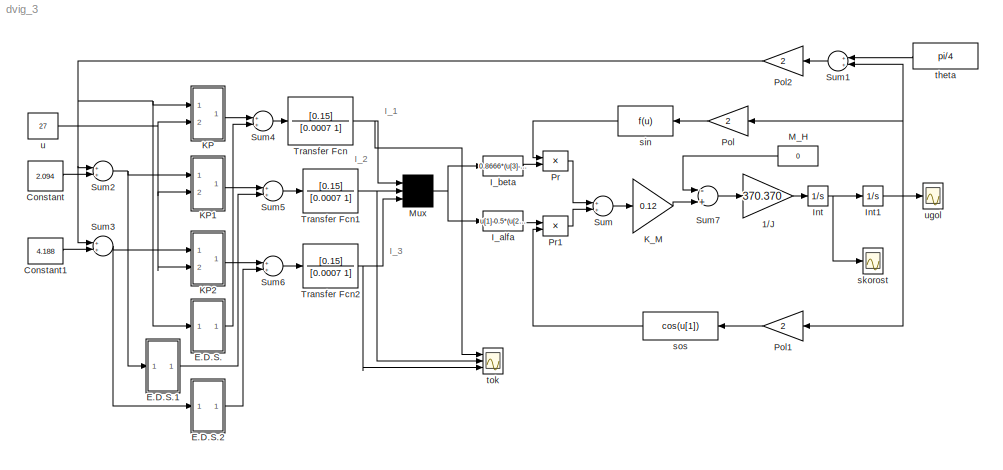
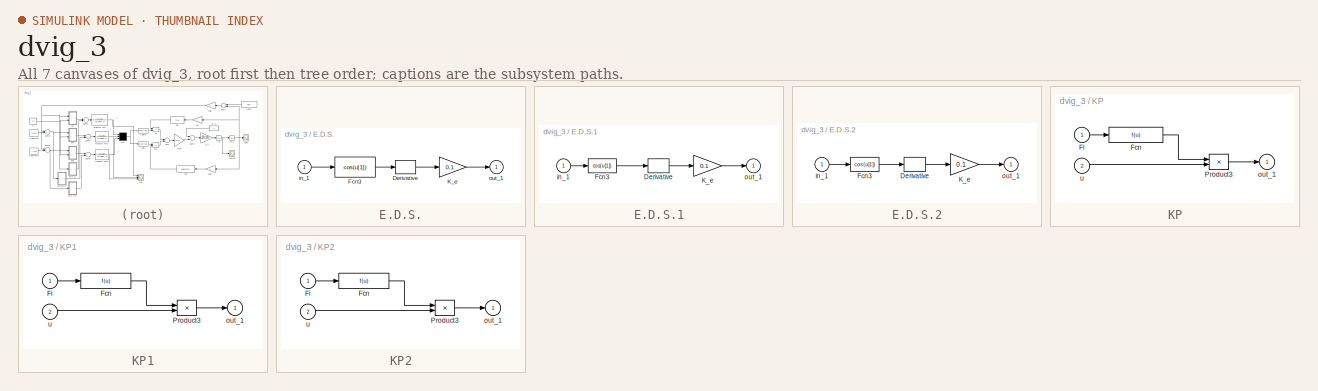
[diagram: thumbnail index - all 7 canvases of the model, root first then tree order]
MODEL dvig_3
KIND model
BLOCK [Gain] 1//J
  Gain = 370.370
  SID = 1
BLOCK [Constant] Constant
  SID = 2
  Value = 2.094
BLOCK [Constant] Constant1
  SID = 3
  Value = 4.188
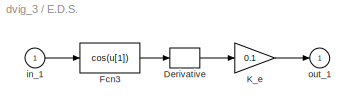
BLOCK [SubSystem] E.D.S.
  Ports = [1, 1]
  RequestExecContextInheritance = off
  SID = 4
  ShowPortLabels = none
  Variant = off
BLOCK [Derivative] E.D.S./Derivative
  SID = 6
BLOCK [Fcn] E.D.S./Fcn3
  Expr = cos(u[1])
  SID = 7
BLOCK [Gain] E.D.S./K_e
  Gain = 0.1
  SID = 8
BLOCK [Inport] E.D.S./in_1
  IconDisplay = Port number
  SID = 5
BLOCK [Outport] E.D.S./out_1
  IconDisplay = Port number
  SID = 9
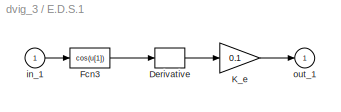
BLOCK [SubSystem] E.D.S.1
  Ports = [1, 1]
  RequestExecContextInheritance = off
  SID = 10
  ShowPortLabels = none
  Variant = off
BLOCK [Derivative] E.D.S.1/Derivative
  SID = 12
BLOCK [Fcn] E.D.S.1/Fcn3
  Expr = cos(u[1])
  SID = 13
BLOCK [Gain] E.D.S.1/K_e
  Gain = 0.1
  SID = 14
BLOCK [Inport] E.D.S.1/in_1
  IconDisplay = Port number
  SID = 11
BLOCK [Outport] E.D.S.1/out_1
  IconDisplay = Port number
  SID = 15
BLOCK [SubSystem] E.D.S.2
  Ports = [1, 1]
  RequestExecContextInheritance = off
  SID = 16
  ShowPortLabels = none
  Variant = off
BLOCK [Derivative] E.D.S.2/Derivative
  SID = 18
BLOCK [Fcn] E.D.S.2/Fcn3
  Expr = cos(u[1])
  SID = 19
BLOCK [Gain] E.D.S.2/K_e
  Gain = 0.1
  SID = 20
BLOCK [Inport] E.D.S.2/in_1
  IconDisplay = Port number
  SID = 17
BLOCK [Outport] E.D.S.2/out_1
  IconDisplay = Port number
  SID = 21
BLOCK [Fcn] I_alfa
  Expr = u[1]-0.5*(u[2]+u[3])
  SID = 22
BLOCK [Fcn] I_beta
  Expr = 0.8666*(u[3]-u[2])
  SID = 23
BLOCK [Integrator] Int
  Ports = [1, 1]
  SID = 24
BLOCK [Integrator] Int1
  Ports = [1, 1]
  SID = 25
BLOCK [SubSystem] KP
  Ports = [2, 1]
  RequestExecContextInheritance = off
  SID = 26
  ShowPortLabels = none
  Variant = off
BLOCK [Fcn] KP/Fcn
  SID = 29
BLOCK [Inport] KP/Fi
  IconDisplay = Port number
  SID = 27
BLOCK [Product] KP/Product3
  Ports = [2, 1]
  RndMeth = Floor
  SID = 30
BLOCK [Outport] KP/out_1
  IconDisplay = Port number
  SID = 31
BLOCK [Inport] KP/u
  IconDisplay = Port number
  Port = 2
  SID = 28
BLOCK [SubSystem] KP1
  Ports = [2, 1]
  RequestExecContextInheritance = off
  SID = 32
  ShowPortLabels = none
  Variant = off
BLOCK [Fcn] KP1/Fcn
  SID = 35
BLOCK [Inport] KP1/Fi
  IconDisplay = Port number
  SID = 33
BLOCK [Product] KP1/Product3
  Ports = [2, 1]
  RndMeth = Floor
  SID = 36
BLOCK [Outport] KP1/out_1
  IconDisplay = Port number
  SID = 37
BLOCK [Inport] KP1/u
  IconDisplay = Port number
  Port = 2
  SID = 34
BLOCK [SubSystem] KP2
  Ports = [2, 1]
  RequestExecContextInheritance = off
  SID = 38
  ShowPortLabels = none
  Variant = off
BLOCK [Fcn] KP2/Fcn
  SID = 41
BLOCK [Inport] KP2/Fi
  IconDisplay = Port number
  SID = 39
BLOCK [Product] KP2/Product3
  Ports = [2, 1]
  RndMeth = Floor
  SID = 42
BLOCK [Outport] KP2/out_1
  IconDisplay = Port number
  SID = 43
BLOCK [Inport] KP2/u
  IconDisplay = Port number
  Port = 2
  SID = 40
BLOCK [Gain] K_M
  Gain = 0.12
  SID = 44
BLOCK [Constant] M_H
  SID = 45
  Value = 0
BLOCK [Mux] Mux
  Inputs = 3
  Ports = [3, 1]
  SID = 46
BLOCK [Gain] Pol
  Gain = 2
  SID = 47
BLOCK [Gain] Pol1
  Gain = 2
  SID = 48
BLOCK [Gain] Pol2
  Gain = 2
  SID = 49
BLOCK [Product] Pr
  Ports = [2, 1]
  RndMeth = Floor
  SID = 50
BLOCK [Product] Pr1
  Ports = [2, 1]
  RndMeth = Floor
  SID = 51
BLOCK [Sum] Sum
  Ports = [2, 1]
  SID = 52
BLOCK [Sum] Sum1
  Ports = [2, 1]
  SID = 53
BLOCK [Sum] Sum2
  Ports = [2, 1]
  SID = 54
BLOCK [Sum] Sum3
  Ports = [2, 1]
  SID = 55
BLOCK [Sum] Sum4
  Ports = [2, 1]
  SID = 56
BLOCK [Sum] Sum5
  Ports = [2, 1]
  SID = 57
BLOCK [Sum] Sum6
  Ports = [2, 1]
  SID = 58
BLOCK [Sum] Sum7
  Inputs = -+
  Ports = [2, 1]
  SID = 59
BLOCK [TransferFcn] Transfer Fcn
  Denominator = [0.0007 1]
  Numerator = [0.15]
  SID = 60
BLOCK [TransferFcn] Transfer Fcn1
  Denominator = [0.0007 1]
  Numerator = [0.15]
  SID = 61
BLOCK [TransferFcn] Transfer Fcn2
  Denominator = [0.0007 1]
  Numerator = [0.15]
  SID = 62
BLOCK [Fcn] sin
  SID = 63
BLOCK [Scope] skorost
  NumInputPorts = 1
  Ports = [1]
  SID = 64
  ScopeSpecificationString = Simulink.scopes.TimeScopeBlockCfg('CurrentConfiguration', extmgr.ConfigurationSet(extmgr.Configuration('Core','General UI',true),extmgr.Configuration('Core','Source UI',true),extmgr.Configuration('Sources','WiredSimulink',true,'DataLoggingSaveFormat','StructureWithTime','DataLoggingDecimation','1','DataLoggingDecimateData',true,'DataLogging',true,'DataLoggingVariableName','result_2'),extmgr.Config...<+1641ch>
BLOCK [Fcn] sos
  Expr = cos(u[1])
  SID = 65
BLOCK [Constant] theta
  SID = 66
  Value = pi/4
BLOCK [Scope] tok
  NumInputPorts = 3
  Ports = [3]
  SID = 67
  ScopeSpecificationString = Simulink.scopes.TimeScopeBlockCfg('CurrentConfiguration', extmgr.ConfigurationSet(extmgr.Configuration('Core','General UI',true),extmgr.Configuration('Core','Source UI',true),extmgr.Configuration('Sources','WiredSimulink',true,'DataLoggingSaveFormat','StructureWithTime','DataLoggingLimitDataPoints',true,'DataLoggingDecimation','1','DataLoggingDecimateData',true,'DataLogging',true,'DataLoggingVaria...<+1706ch>
BLOCK [Constant] u
  SID = 68
  Value = 27
BLOCK [Scope] ugol
  NumInputPorts = 1
  Ports = [1]
  SID = 69
  ScopeSpecificationString = C++SS(StrPVP('Location','[6, 60, 336, 440]'),StrPVP('Open','off'),MxPVP('AxesTitles',53,'struct(''axes1'',''%<SignalLabel>'')'),StrPVP('TimeRange','4.000000'),StrPVP('YMin','-1'),StrPVP('YMax','1'),StrPVP('DataFormat','Array'),StrPVP('LimitDataPoints','on'),StrPVP('Decimation','1'),StrPVP('BlockParamSampleInput','off'))
ANNOTATION (root): I_1
ANNOTATION (root): I_2
ANNOTATION (root): I_3
LINE 1//J:1 -> Int:1
LINE Constant1:1 -> Sum3:2
LINE Constant:1 -> Sum2:2
LINE E.D.S./Derivative:1 -> E.D.S./K_e:1
LINE E.D.S./Fcn3:1 -> E.D.S./Derivative:1
LINE E.D.S./K_e:1 -> E.D.S./out_1:1
LINE E.D.S./in_1:1 -> E.D.S./Fcn3:1
LINE E.D.S.1/Derivative:1 -> E.D.S.1/K_e:1
LINE E.D.S.1/Fcn3:1 -> E.D.S.1/Derivative:1
LINE E.D.S.1/K_e:1 -> E.D.S.1/out_1:1
LINE E.D.S.1/in_1:1 -> E.D.S.1/Fcn3:1
LINE E.D.S.1:1 -> Sum5:2
LINE E.D.S.2/Derivative:1 -> E.D.S.2/K_e:1
LINE E.D.S.2/Fcn3:1 -> E.D.S.2/Derivative:1
LINE E.D.S.2/K_e:1 -> E.D.S.2/out_1:1
LINE E.D.S.2/in_1:1 -> E.D.S.2/Fcn3:1
LINE E.D.S.2:1 -> Sum6:2
LINE E.D.S.:1 -> Sum4:2
LINE I_alfa:1 -> Pr1:1
LINE I_beta:1 -> Pr:2
NET Int1:1 -> Pol1:1, Pol:1, Sum1:2, ugol:1
NET Int:1 -> Int1:1, skorost:1
LINE KP/Fcn:1 -> KP/Product3:1
LINE KP/Fi:1 -> KP/Fcn:1
LINE KP/Product3:1 -> KP/out_1:1
LINE KP/u:1 -> KP/Product3:2
LINE KP1/Fcn:1 -> KP1/Product3:1
LINE KP1/Fi:1 -> KP1/Fcn:1
LINE KP1/Product3:1 -> KP1/out_1:1
LINE KP1/u:1 -> KP1/Product3:2
LINE KP1:1 -> Sum5:1
LINE KP2/Fcn:1 -> KP2/Product3:1
LINE KP2/Fi:1 -> KP2/Fcn:1
LINE KP2/Product3:1 -> KP2/out_1:1
LINE KP2/u:1 -> KP2/Product3:2
LINE KP2:1 -> Sum6:1
LINE KP:1 -> Sum4:1
LINE K_M:1 -> Sum7:2
LINE M_H:1 -> Sum7:1
NET Mux:1 -> I_alfa:1, I_beta:1
LINE Pol1:1 -> sos:1
NET Pol2:1 -> E.D.S.:1, KP:1, Sum2:1, Sum3:1
LINE Pol:1 -> sin:1
LINE Pr1:1 -> Sum:2
LINE Pr:1 -> Sum:1
LINE Sum1:1 -> Pol2:1
NET Sum2:1 -> E.D.S.1:1, KP1:1
NET Sum3:1 -> E.D.S.2:1, KP2:1
LINE Sum4:1 -> Transfer Fcn:1
LINE Sum5:1 -> Transfer Fcn1:1
LINE Sum6:1 -> Transfer Fcn2:1
LINE Sum7:1 -> 1//J:1
LINE Sum:1 -> K_M:1
NET Transfer Fcn1:1 -> Mux:2, tok:2
NET Transfer Fcn2:1 -> Mux:3, tok:3
NET Transfer Fcn:1 -> Mux:1, tok:1
LINE sin:1 -> Pr:1
LINE sos:1 -> Pr1:2
LINE theta:1 -> Sum1:1
NET u:1 -> KP1:2, KP2:2, KP:2
note: NET lines group one-source signal fan-out (src -> all destinations, sorted); 1:1 wires keep LINE
